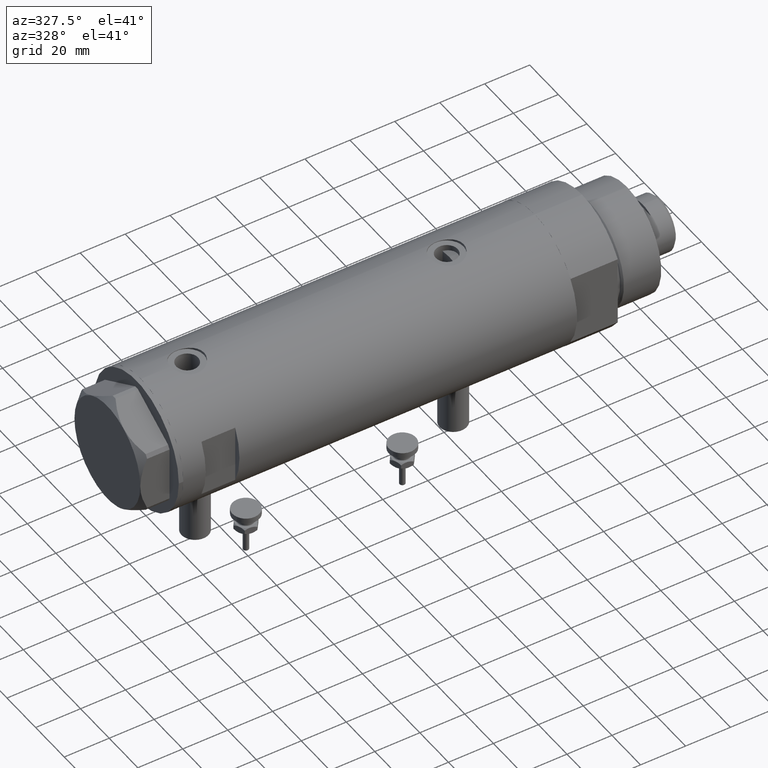
[diagram: clean part render]
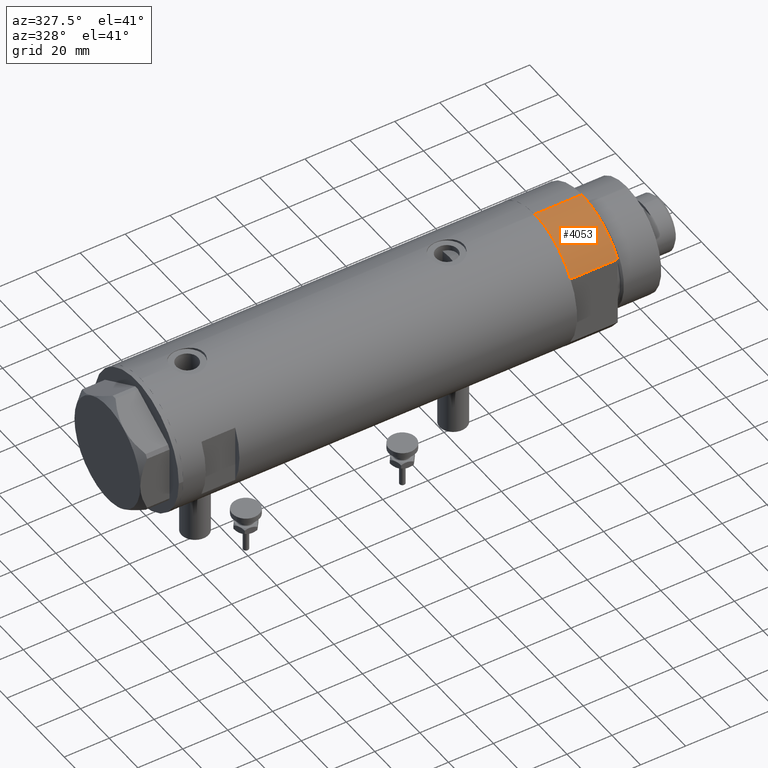
[diagram: same view with one face highlighted and labeled with its STEP entity id]
A machine part, auxiliary view. The second image highlights one B-rep face of the part: STEP entity #4053.
In plain terms, the highlighted cylindrical surface (partial cylindrical patch) has radius 29.5 mm, axis along (-1, -0, 0).
Its self-contained STEP definition (entity closure, byte-faithful):
#121 = DIRECTION ( 'NONE',  ( -0.000000000000000000, -0.000000000000000000, -1.000000000000000000 ) ) ;
#205 = AXIS2_PLACEMENT_3D ( 'NONE', #2415, #121, #5591 ) ;
#212 = EDGE_LOOP ( 'NONE', ( #1057, #921, #2810, #4375 ) ) ;
#260 = CARTESIAN_POINT ( 'NONE',  ( -29.50000000000000355, 0.000000000000000000, 21.00000000000000000 ) ) ;
#286 = LINE ( 'NONE', #260, #4940 ) ;
#290 = AXIS2_PLACEMENT_3D ( 'NONE', #3137, #2654, #4531 ) ;
#308 = AXIS2_PLACEMENT_3D ( 'NONE', #4231, #505, #3243 ) ;
#505 = DIRECTION ( 'NONE',  ( 0.000000000000000000, 0.000000000000000000, 1.000000000000000000 ) ) ;
#575 = CYLINDRICAL_SURFACE ( 'NONE', #205, 29.50000000000000355 ) ;
#696 = CARTESIAN_POINT ( 'NONE',  ( -29.50000000000000355, 0.000000000000000000, 0.000000000000000000 ) ) ;
#727 = CARTESIAN_POINT ( 'NONE',  ( -15.66045976336583045, -24.99999999999999645, 20.99999999999999645 ) ) ;
#835 = CARTESIAN_POINT ( 'NONE',  ( -15.66045976336582690, -25.00000000000000000, 0.000000000000000000 ) ) ;
#921 = ORIENTED_EDGE ( 'NONE', *, *, #1194, .T. ) ;
#1057 = ORIENTED_EDGE ( 'NONE', *, *, #3544, .F. ) ;
#1194 = EDGE_CURVE ( 'NONE', #4826, #4135, #286, .T. ) ;
#1356 = VECTOR ( 'NONE', #2711, 1000.000000000000000 ) ;
#2272 = LINE ( 'NONE', #4038, #1356 ) ;
#2415 = CARTESIAN_POINT ( 'NONE',  ( 0.000000000000000000, 0.000000000000000000, 21.00000000000000000 ) ) ;
#2654 = DIRECTION ( 'NONE',  ( 0.000000000000000000, 0.000000000000000000, 1.000000000000000000 ) ) ;
#2711 = DIRECTION ( 'NONE',  ( -0.000000000000000000, -0.000000000000000000, 1.000000000000000000 ) ) ;
#2810 = ORIENTED_EDGE ( 'NONE', *, *, #5557, .T. ) ;
#3137 = CARTESIAN_POINT ( 'NONE',  ( 0.000000000000000000, 0.000000000000000000, 21.00000000000000000 ) ) ;
#3243 = DIRECTION ( 'NONE',  ( 1.000000000000000000, 0.000000000000000000, 0.000000000000000000 ) ) ;
#3314 = FACE_OUTER_BOUND ( 'NONE', #212, .T. ) ;
#3509 = DIRECTION ( 'NONE',  ( -0.000000000000000000, -0.000000000000000000, -1.000000000000000000 ) ) ;
#3544 = EDGE_CURVE ( 'NONE', #4826, #5243, #4965, .T. ) ;
#3838 = CARTESIAN_POINT ( 'NONE',  ( -29.50000000000000355, 0.000000000000000000, 21.00000000000000000 ) ) ;
#4038 = CARTESIAN_POINT ( 'NONE',  ( -15.66045976336583401, -25.00000000000000000, 0.000000000000000000 ) ) ;
#4053 = ADVANCED_FACE ( 'NONE', ( #3314 ), #575, .T. ) ;
#4135 = VERTEX_POINT ( 'NONE', #696 ) ;
#4226 = VERTEX_POINT ( 'NONE', #835 ) ;
#4231 = CARTESIAN_POINT ( 'NONE',  ( 0.000000000000000000, 0.000000000000000000, 0.000000000000000000 ) ) ;
#4375 = ORIENTED_EDGE ( 'NONE', *, *, #5041, .T. ) ;
#4531 = DIRECTION ( 'NONE',  ( 1.000000000000000000, 0.000000000000000000, 0.000000000000000000 ) ) ;
#4696 = CIRCLE ( 'NONE', #308, 29.50000000000000355 ) ;
#4826 = VERTEX_POINT ( 'NONE', #3838 ) ;
#4940 = VECTOR ( 'NONE', #3509, 1000.000000000000000 ) ;
#4965 = CIRCLE ( 'NONE', #290, 29.50000000000000355 ) ;
#5041 = EDGE_CURVE ( 'NONE', #4226, #5243, #2272, .T. ) ;
#5243 = VERTEX_POINT ( 'NONE', #727 ) ;
#5557 = EDGE_CURVE ( 'NONE', #4135, #4226, #4696, .T. ) ;
#5591 = DIRECTION ( 'NONE',  ( -1.000000000000000000, 0.000000000000000000, 0.000000000000000000 ) ) ;